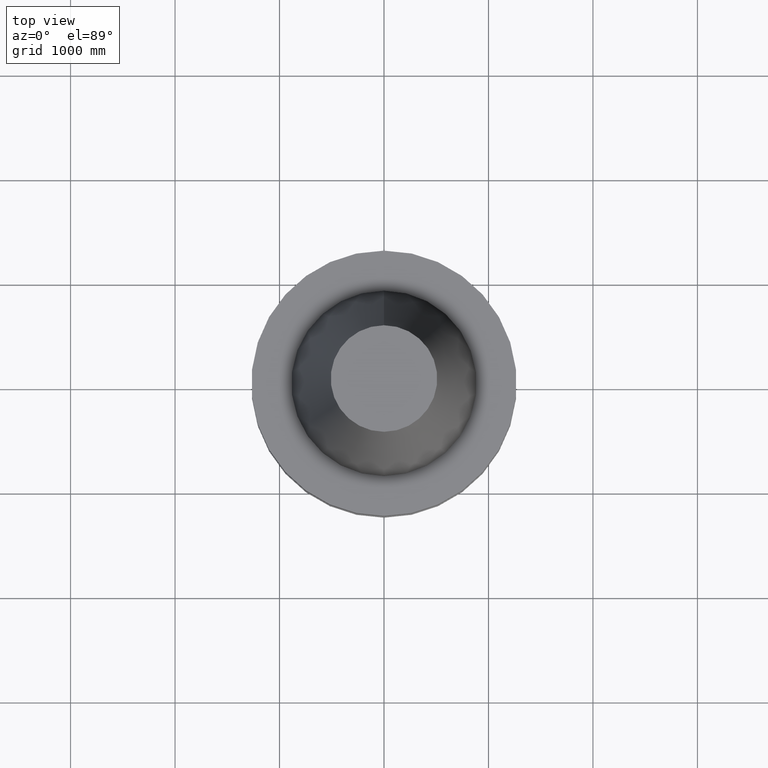
[diagram: clean part render]
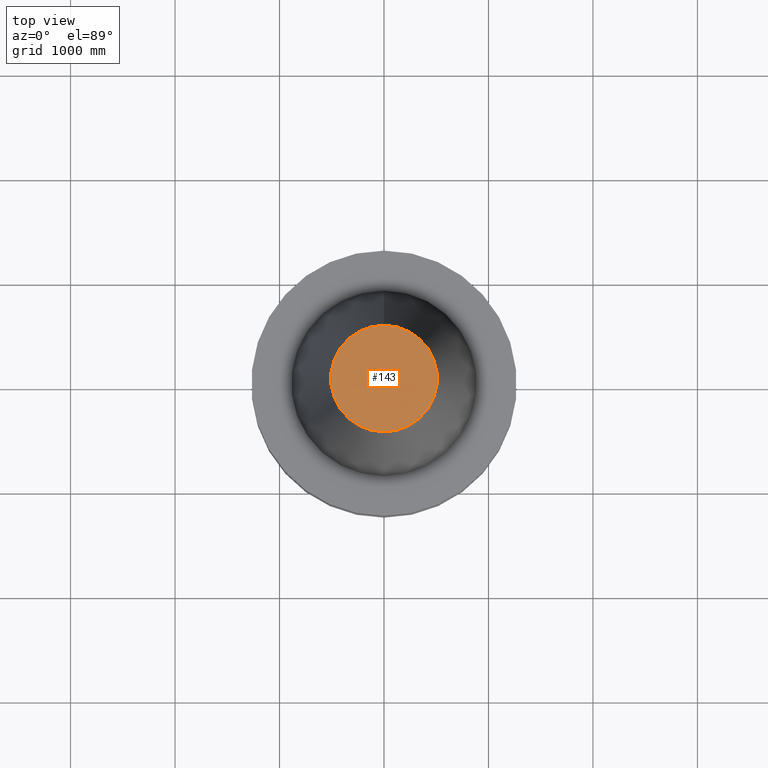
[diagram: same view with one face highlighted and labeled with its STEP entity id]
A machine part, top view. The second image highlights one B-rep face of the part: STEP entity #143.
In plain terms, the highlighted planar face has unit normal (-0, -0, 1).
Its self-contained STEP definition (entity closure, byte-faithful):
#100=EDGE_CURVE('Unnamed[1]',#239,#239,#240,.T.);
#143=ADVANCED_FACE('Unnamed[1]',(#304),#305,.T.);
#239=VERTEX_POINT('',#424);
#240=CIRCLE('',#425,20.0791666651884);
#304=FACE_OUTER_BOUND('',#505,.T.);
#305=PLANE('',#506);
#424=CARTESIAN_POINT('',(-6.23345220766003E-015,20.0791666651884,101.8));
#425=AXIS2_PLACEMENT_3D('',#620,#621,#622);
#505=EDGE_LOOP('',(#690));
#506=AXIS2_PLACEMENT_3D('',#691,#692,#693);
#620=CARTESIAN_POINT('',(-6.23345220766003E-015,1.30258929046129E-014,101.8));
#621=DIRECTION('',(-6.12323399573677E-017,-1.5261999847694E-017,1.0));
#622=DIRECTION('',(-5.76168069386895E-033,1.0,1.5261999847694E-017));
#690=ORIENTED_EDGE('',*,*,#100,.T.);
#691=CARTESIAN_POINT('',(-6.23345220766003E-015,10.0395833325942,101.8));
#692=DIRECTION('',(-6.12323399573677E-017,-1.22464679914735E-016,1.0));
#693=DIRECTION('',(-1.23259516440783E-032,1.0,1.22464679914735E-016));